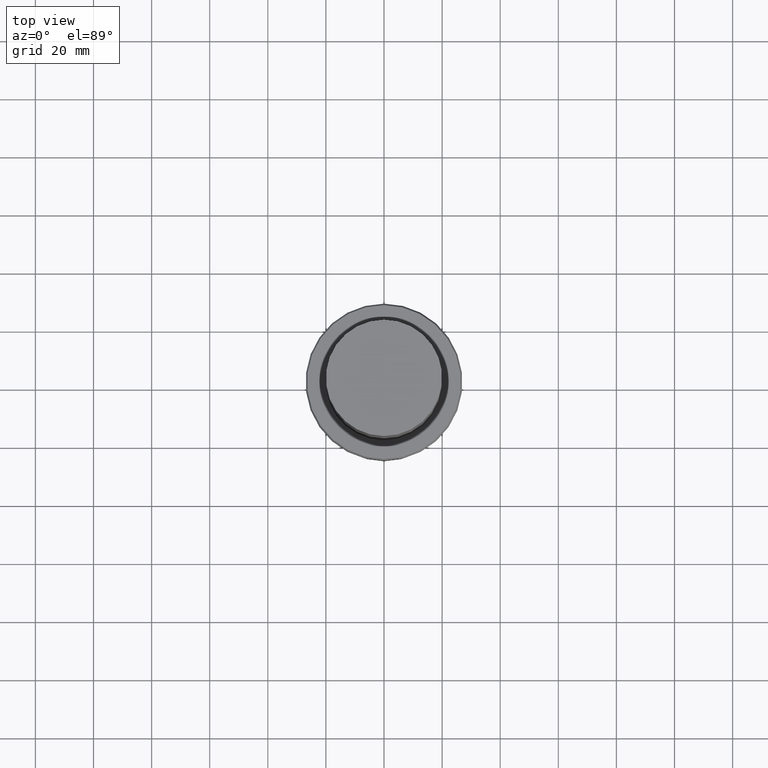
[diagram: clean part render]
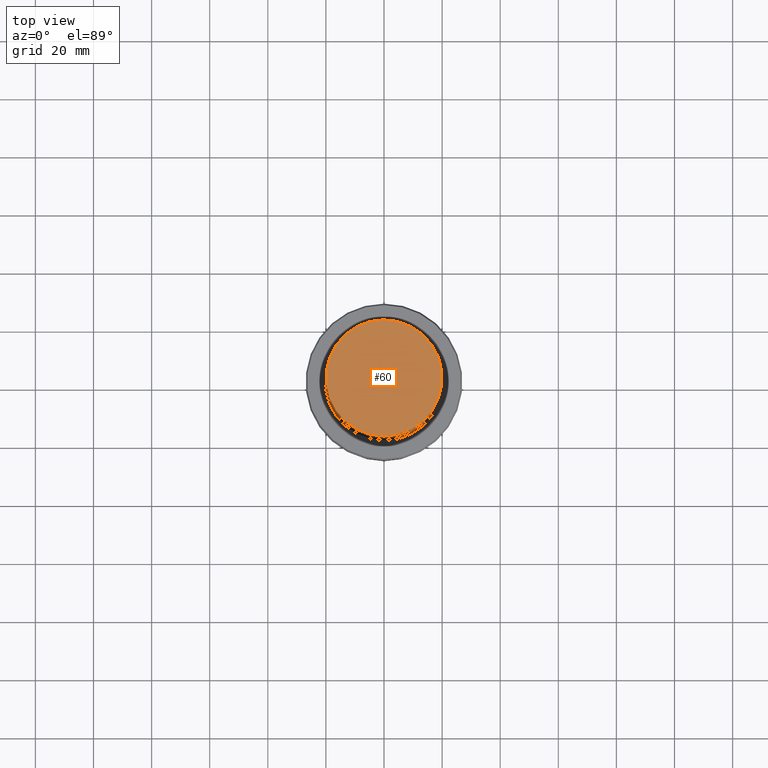
[diagram: same view with one face highlighted and labeled with its STEP entity id]
A machine part, top view. The second image highlights one B-rep face of the part: STEP entity #60.
In plain terms, the highlighted planar face has unit normal (0, 0, 1).
Its self-contained STEP definition (entity closure, byte-faithful):
#46=EDGE_CURVE('240[2]',#107,#107,#108,.T.);
#60=ADVANCED_FACE('240[2]',(#129),#130,.T.);
#107=VERTEX_POINT('',#178);
#108=CIRCLE('',#179,19.999999999975);
#129=FACE_OUTER_BOUND('',#205,.T.);
#130=PLANE('',#206);
#178=CARTESIAN_POINT('',(-1.46957615897684E-014,19.999999999975,240.000000000003));
#179=AXIS2_PLACEMENT_3D('',#254,#255,#256);
#205=EDGE_LOOP('',(#279));
#206=AXIS2_PLACEMENT_3D('',#280,#281,#282);
#254=CARTESIAN_POINT('',(-1.46957615897684E-014,-2.93915231795368E-014,240.000000000003));
#255=DIRECTION('',(6.12323399573677E-017,1.22464679914735E-016,-1.0));
#256=DIRECTION('',(-1.23259516440783E-032,1.0,1.22464679914735E-016));
#279=ORIENTED_EDGE('',*,*,#46,.F.);
#280=CARTESIAN_POINT('',(-1.46957615897684E-014,9.99999999998747,240.000000000003));
#281=DIRECTION('',(0.0,4.74838986160715E-014,1.0));
#282=DIRECTION('',(1.0,2.90755022256047E-030,-1.38061819989197E-043));